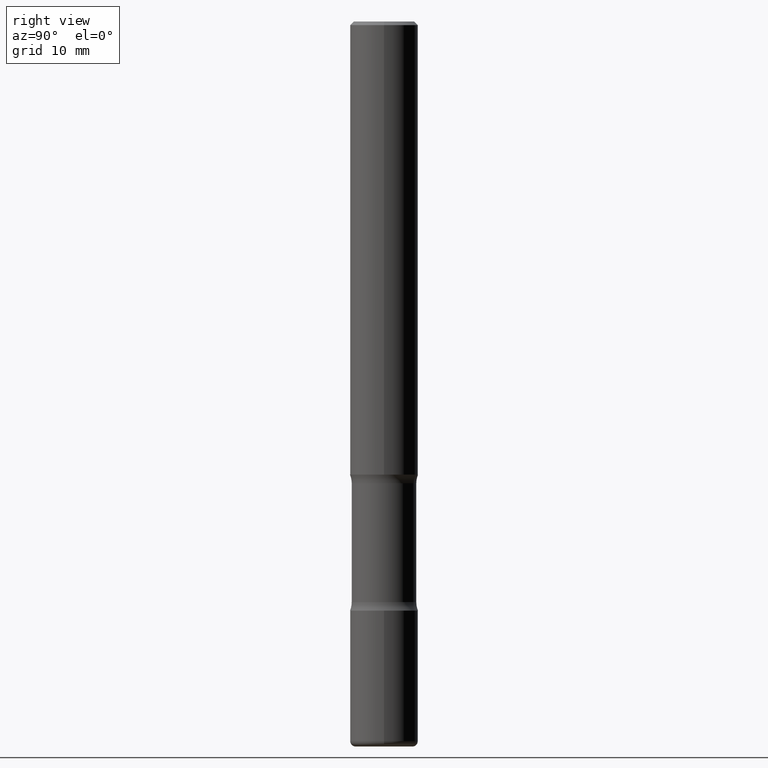
[diagram: clean part render]
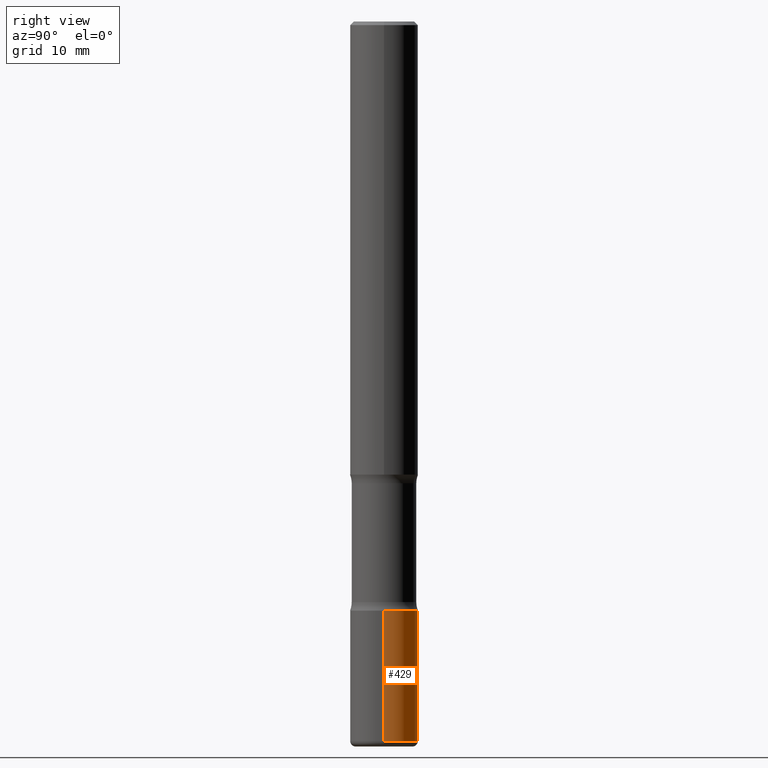
[diagram: same view with one face highlighted and labeled with its STEP entity id]
A machine part, right view. The second image highlights one B-rep face of the part: STEP entity #429.
In plain terms, the highlighted cylindrical surface (edge-blend (fillet) strip) has radius 4.7625 mm, axis along (-0, 0, 1).
Its self-contained STEP definition (entity closure, byte-faithful):
#5 = CIRCLE ( 'NONE', #145, 0.1875000000000000833 ) ;
#13 = EDGE_CURVE ( 'NONE', #383, #555, #441, .T. ) ;
#18 = CIRCLE ( 'NONE', #381, 0.1875000000000001110 ) ;
#41 = CARTESIAN_POINT ( 'NONE',  ( -0.1875000000000001110, 1.332267629550188637E-15, -9.223003294227953596E-30 ) ) ;
#52 = CARTESIAN_POINT ( 'NONE',  ( 7.947773620101696182E-29, -1.134731435124022600E-14, -3.250000000000000444 ) ) ;
#73 = CARTESIAN_POINT ( 'NONE',  ( 0.1874999999999999722, -1.517048641727346712E-14, -3.970000000000000639 ) ) ;
#77 = ORIENTED_EDGE ( 'NONE', *, *, #112, .F. ) ;
#89 = DIRECTION ( 'NONE',  ( -2.445468806185136877E-29, 3.491481338843145188E-15, 1.000000000000000000 ) ) ;
#99 = CARTESIAN_POINT ( 'NONE',  ( 0.000000000000000000, 0.000000000000000000, 0.000000000000000000 ) ) ;
#106 = EDGE_CURVE ( 'NONE', #341, #555, #5, .T. ) ;
#112 = EDGE_CURVE ( 'NONE', #272, #341, #321, .T. ) ;
#120 = CARTESIAN_POINT ( 'NONE',  ( 0.1875000000000000833, -1.265661985330640259E-14, -3.250000000000000444 ) ) ;
#144 = FACE_OUTER_BOUND ( 'NONE', #167, .T. ) ;
#145 = AXIS2_PLACEMENT_3D ( 'NONE', #52, #227, #447 ) ;
#161 = VECTOR ( 'NONE', #89, 39.37007874015748143 ) ;
#163 = CARTESIAN_POINT ( 'NONE',  ( 9.708511160554993993E-29, -1.386118091520729054E-14, -3.970000000000000639 ) ) ;
#167 = EDGE_LOOP ( 'NONE', ( #257, #253, #509, #77 ) ) ;
#227 = DIRECTION ( 'NONE',  ( -2.445468806185136597E-29, 3.491481338843145583E-15, 1.000000000000000000 ) ) ;
#229 = DIRECTION ( 'NONE',  ( -2.445468806185136597E-29, 3.491481338843145583E-15, 1.000000000000000000 ) ) ;
#242 = DIRECTION ( 'NONE',  ( -2.445468806185136877E-29, 3.491481338843145188E-15, 1.000000000000000000 ) ) ;
#253 = ORIENTED_EDGE ( 'NONE', *, *, #13, .T. ) ;
#257 = ORIENTED_EDGE ( 'NONE', *, *, #332, .T. ) ;
#270 = DIRECTION ( 'NONE',  ( 1.000000000000000000, -6.982962677686269077E-15, 0.000000000000000000 ) ) ;
#272 = VERTEX_POINT ( 'NONE', #73 ) ;
#275 = DIRECTION ( 'NONE',  ( 1.000000000000000000, -6.982962677686266711E-15, 4.876176775795935793E-29 ) ) ;
#280 = CYLINDRICAL_SURFACE ( 'NONE', #343, 0.1875000000000001110 ) ;
#321 = LINE ( 'NONE', #453, #541 ) ;
#332 = EDGE_CURVE ( 'NONE', #272, #383, #18, .T. ) ;
#341 = VERTEX_POINT ( 'NONE', #120 ) ;
#343 = AXIS2_PLACEMENT_3D ( 'NONE', #99, #535, #275 ) ;
#381 = AXIS2_PLACEMENT_3D ( 'NONE', #163, #229, #270 ) ;
#383 = VERTEX_POINT ( 'NONE', #467 ) ;
#429 = ADVANCED_FACE ( 'NONE', ( #144 ), #280, .T. ) ;
#441 = LINE ( 'NONE', #41, #161 ) ;
#447 = DIRECTION ( 'NONE',  ( 1.000000000000000000, -6.982962677686269866E-15, 0.000000000000000000 ) ) ;
#453 = CARTESIAN_POINT ( 'NONE',  ( 0.1875000000000001110, -1.309305502066175797E-15, 9.142831454617385217E-30 ) ) ;
#467 = CARTESIAN_POINT ( 'NONE',  ( -0.1874999999999999722, -1.252891328565710269E-14, -3.970000000000000639 ) ) ;
#509 = ORIENTED_EDGE ( 'NONE', *, *, #106, .F. ) ;
#512 = CARTESIAN_POINT ( 'NONE',  ( -0.1875000000000000833, -1.127198000367356963E-14, -3.250000000000000444 ) ) ;
#535 = DIRECTION ( 'NONE',  ( -2.445468806185136597E-29, 3.491481338843145583E-15, 1.000000000000000000 ) ) ;
#541 = VECTOR ( 'NONE', #242, 39.37007874015748143 ) ;
#555 = VERTEX_POINT ( 'NONE', #512 ) ;